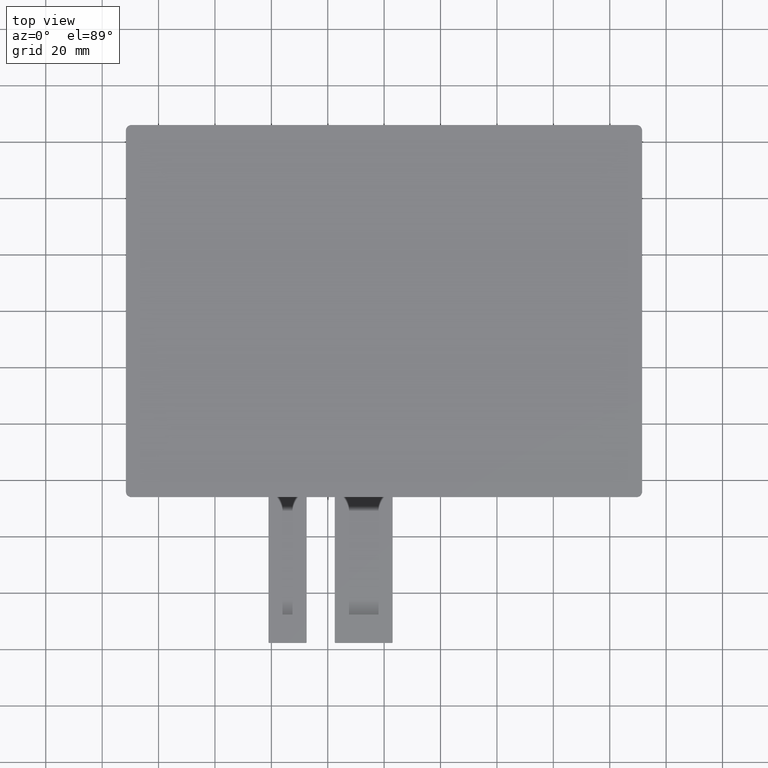
[diagram: clean part render]
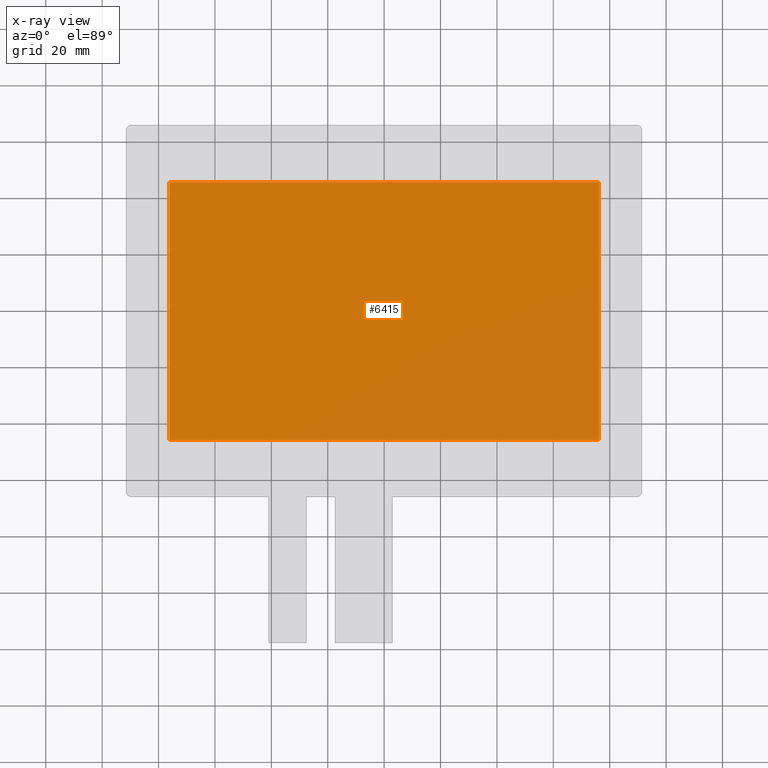
[diagram: x-ray — body ghosted, one internal face saturated and labeled with its STEP entity id]
A machine part, top view, then the same camera in x-ray: the body is ghosted and one INTERNAL B-rep face — a face not visible from any outside direction — is saturated and labeled: STEP entity #6415.
In plain terms, the highlighted planar face has unit normal (0, 0, 1).
Its self-contained STEP definition (entity closure, byte-faithful):
#361=FACE_OUTER_BOUND('',#673,.T.);
#673=EDGE_LOOP('',(#5778,#5779,#5780,#5781));
#1554=LINE('',#10103,#2442);
#1557=LINE('',#10108,#2445);
#1559=LINE('',#10112,#2447);
#1561=LINE('',#10115,#2449);
#2442=VECTOR('',#8284,10.);
#2445=VECTOR('',#8289,10.);
#2447=VECTOR('',#8293,10.);
#2449=VECTOR('',#8297,10.);
#3066=VERTEX_POINT('',#10101);
#3067=VERTEX_POINT('',#10102);
#3068=VERTEX_POINT('',#10107);
#3069=VERTEX_POINT('',#10111);
#3966=EDGE_CURVE('',#3066,#3067,#1554,.T.);
#3969=EDGE_CURVE('',#3067,#3068,#1557,.T.);
#3971=EDGE_CURVE('',#3068,#3069,#1559,.T.);
#3973=EDGE_CURVE('',#3069,#3066,#1561,.T.);
#5778=ORIENTED_EDGE('',*,*,#3973,.T.);
#5779=ORIENTED_EDGE('',*,*,#3966,.T.);
#5780=ORIENTED_EDGE('',*,*,#3969,.T.);
#5781=ORIENTED_EDGE('',*,*,#3971,.T.);
#6081=PLANE('',#6761);
#6415=ADVANCED_FACE('',(#361),#6081,.F.);
#6761=AXIS2_PLACEMENT_3D('',#10116,#8298,#8299);
#8284=DIRECTION('',(-1.,-2.3311769545935E-16,0.));
#8289=DIRECTION('',(-1.94264746216125E-16,1.,0.));
#8293=DIRECTION('',(1.,1.74838271594513E-16,0.));
#8297=DIRECTION('',(1.94264746216125E-16,-1.,0.));
#8298=DIRECTION('center_axis',(0.,0.,1.));
#8299=DIRECTION('ref_axis',(1.,0.,0.));
#10101=CARTESIAN_POINT('',(76.2,-45.72,0.));
#10102=CARTESIAN_POINT('',(-76.2,-45.72,0.));
#10103=CARTESIAN_POINT('',(38.05,-45.72,0.));
#10107=CARTESIAN_POINT('',(-76.2,45.72,0.));
#10108=CARTESIAN_POINT('',(-76.2,-23.87,0.));
#10111=CARTESIAN_POINT('',(76.2,45.72,0.));
#10112=CARTESIAN_POINT('',(-38.15,45.72,0.));
#10115=CARTESIAN_POINT('',(76.2,21.85,0.));
#10116=CARTESIAN_POINT('Origin',(-0.0500000000000078,-0.0199999999999845,
0.));